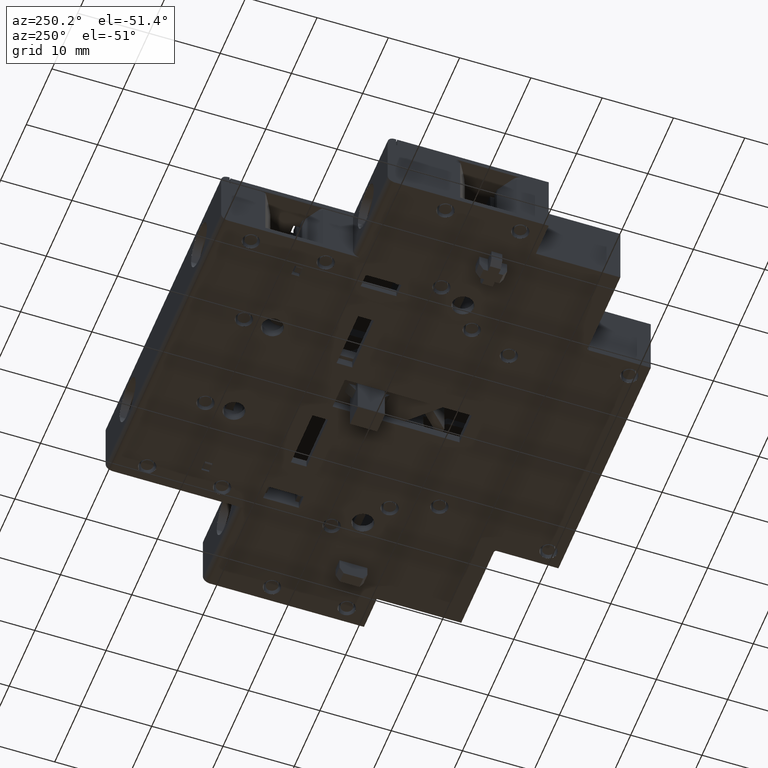
[diagram: clean part render]
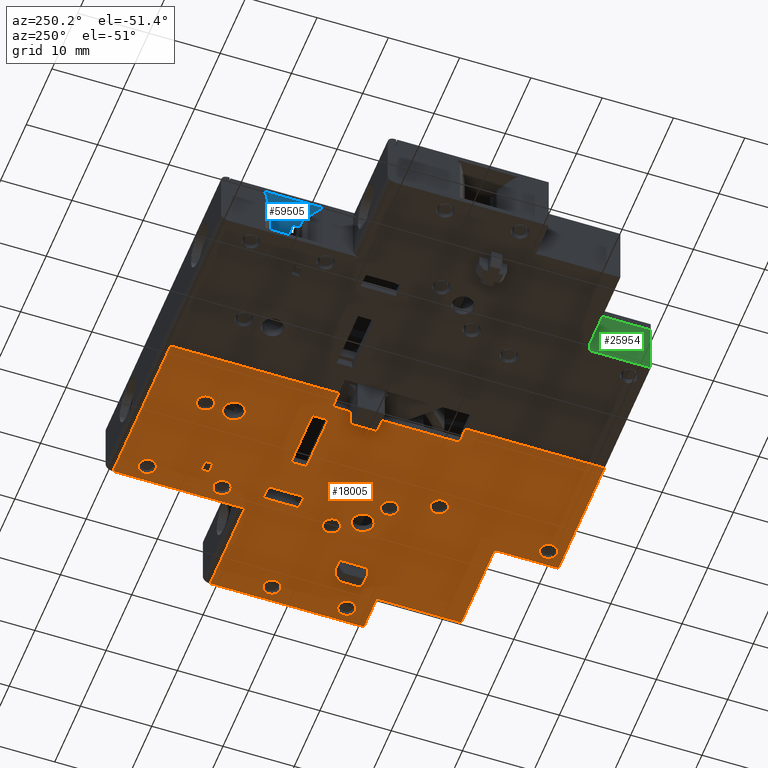
[diagram: same view with three faces highlighted in distinct colors, each labeled with its STEP entity id]
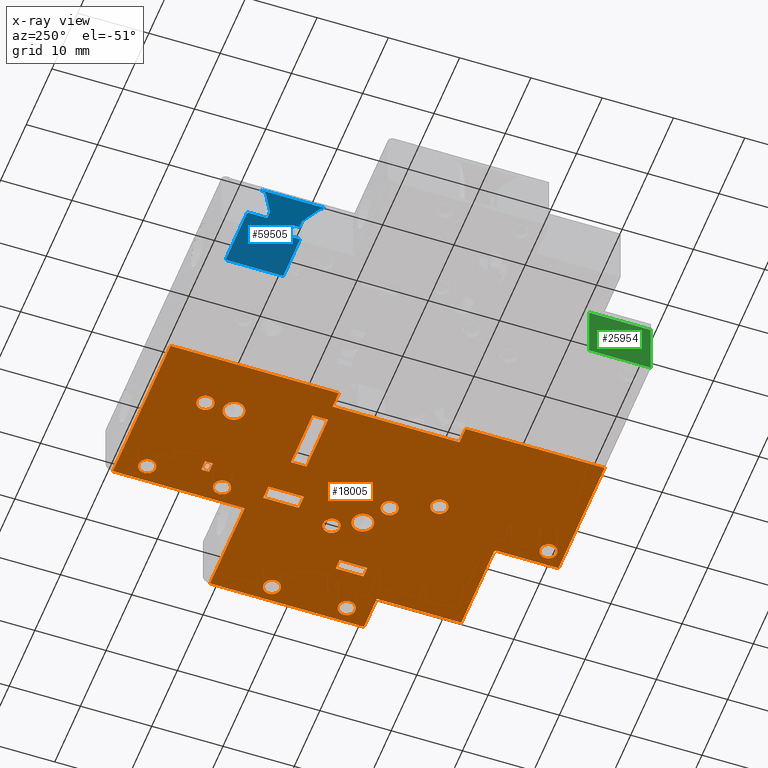
[diagram: x-ray of the same camera — body ghosted, the three highlighted faces saturated]
A machine part, auxiliary view with three faces highlighted in distinct colors.
The next image is the same camera in x-ray (body ghosted, the three faces saturated) — at least one of them is partly hidden behind the body in this view.
Their STEP definitions:

[orange] entity #18005 — the highlighted planar face has unit normal (0, 0, 1).
#7005=CARTESIAN_POINT('',(3.118110546778E1,2.566970650536E1,4.6E0));
#7006=DIRECTION('',(0.E0,0.E0,-1.E0));
#7007=DIRECTION('',(-1.E0,1.184237892933E-14,0.E0));
#7008=AXIS2_PLACEMENT_3D('',#7005,#7006,#7007);
#7010=DIRECTION('',(0.E0,1.E0,0.E0));
#7011=VECTOR('',#7010,3.9E0);
#7012=CARTESIAN_POINT('',(3.938110546778E1,4.076970650536E1,4.6E0));
#7013=LINE('',#7012,#7011);
#7014=DIRECTION('',(1.E0,0.E0,0.E0));
#7015=VECTOR('',#7014,1.5E0);
#7016=CARTESIAN_POINT('',(3.938110546778E1,4.466970650536E1,4.6E0));
#7017=LINE('',#7016,#7015);
#7018=DIRECTION('',(0.E0,-1.E0,0.E0));
#7019=VECTOR('',#7018,3.9E0);
#7020=CARTESIAN_POINT('',(4.088110546778E1,4.466970650536E1,4.6E0));
#7021=LINE('',#7020,#7019);
#7022=DIRECTION('',(-1.E0,0.E0,0.E0));
#7023=VECTOR('',#7022,1.5E0);
#7024=CARTESIAN_POINT('',(4.088110546778E1,4.076970650536E1,4.6E0));
#7025=LINE('',#7024,#7023);
#7026=CARTESIAN_POINT('',(3.427991767942E1,7.386819408172E1,4.6E0));
#7027=CARTESIAN_POINT('',(3.426811330976E1,7.372466497823E1,4.6E0));
#7028=CARTESIAN_POINT('',(3.421260396510E1,7.346322396867E1,4.6E0));
#7029=CARTESIAN_POINT('',(3.402294188462E1,7.314731743693E1,4.6E0));
#7030=CARTESIAN_POINT('',(3.375897048310E1,7.290945571669E1,4.6E0));
#7031=CARTESIAN_POINT('',(3.344585360189E1,7.275841547457E1,4.6E0));
#7032=CARTESIAN_POINT('',(3.308399378953E1,7.270057810177E1,4.6E0));
#7033=CARTESIAN_POINT('',(3.271321908944E1,7.275901145679E1,4.6E0));
#7034=CARTESIAN_POINT('',(3.239331672518E1,7.291441647676E1,4.6E0));
#7035=CARTESIAN_POINT('',(3.211637731504E1,7.317858151968E1,4.6E0));
#7036=CARTESIAN_POINT('',(3.192024363406E1,7.352695425870E1,4.6E0));
#7037=CARTESIAN_POINT('',(3.188099163125E1,7.378302353276E1,4.6E0));
#7038=CARTESIAN_POINT('',(3.188110546778E1,7.391970650536E1,4.6E0));
#7040=CARTESIAN_POINT('',(3.188110546778E1,7.391970650536E1,4.6E0));
#7041=CARTESIAN_POINT('',(3.188022031172E1,7.404993681096E1,4.6E0));
#7042=CARTESIAN_POINT('',(3.191797658508E1,7.429762694188E1,4.6E0));
#7043=CARTESIAN_POINT('',(3.209653191135E1,7.463571777511E1,4.6E0));
#7044=CARTESIAN_POINT('',(3.238698467433E1,7.492576301208E1,4.6E0));
#7045=CARTESIAN_POINT('',(3.274239457118E1,7.509201100955E1,4.6E0));
#7046=CARTESIAN_POINT('',(3.313575686307E1,7.513977057378E1,4.6E0));
#7047=CARTESIAN_POINT('',(3.351360195011E1,7.506043955143E1,4.6E0));
#7048=CARTESIAN_POINT('',(3.384179711543E1,7.487191290580E1,4.6E0));
#7049=CARTESIAN_POINT('',(3.408773713853E1,7.460607569763E1,4.6E0));
#7050=CARTESIAN_POINT('',(3.425059508829E1,7.426553208367E1,4.6E0));
#7051=CARTESIAN_POINT('',(3.428181524206E1,7.400691658843E1,4.6E0));
#7052=CARTESIAN_POINT('',(3.427991767942E1,7.386819408172E1,4.6E0));
#7054=CARTESIAN_POINT('',(2.157991767942E1,7.026819408172E1,4.6E0));
#7055=CARTESIAN_POINT('',(2.156811330976E1,7.012466497823E1,4.6E0));
#7056=CARTESIAN_POINT('',(2.151260396510E1,6.986322396866E1,4.6E0));
#7057=CARTESIAN_POINT('',(2.132294188460E1,6.954731743692E1,4.6E0));
#7058=CARTESIAN_POINT('',(2.105897048307E1,6.930945571667E1,4.6E0));
#7059=CARTESIAN_POINT('',(2.074585360186E1,6.915841547456E1,4.6E0));
#7060=CARTESIAN_POINT('',(2.038399378951E1,6.910057810177E1,4.6E0));
#7061=CARTESIAN_POINT('',(2.001321908942E1,6.915901145679E1,4.6E0));
#7062=CARTESIAN_POINT('',(1.969331672517E1,6.931441647677E1,4.6E0));
#7063=CARTESIAN_POINT('',(1.941637731503E1,6.957858151969E1,4.6E0));
#7064=CARTESIAN_POINT('',(1.922024363405E1,6.992695425871E1,4.6E0));
#7065=CARTESIAN_POINT('',(1.918099163125E1,7.018302353276E1,4.6E0));
#7066=CARTESIAN_POINT('',(1.918110546778E1,7.031970650536E1,4.6E0));
#7068=CARTESIAN_POINT('',(1.918110546778E1,7.031970650536E1,4.6E0));
#7069=CARTESIAN_POINT('',(1.918022031172E1,7.044993681096E1,4.6E0));
#7070=CARTESIAN_POINT('',(1.921797658508E1,7.069762694188E1,4.6E0));
#7071=CARTESIAN_POINT('',(1.939653191135E1,7.103571777511E1,4.6E0));
#7072=CARTESIAN_POINT('',(1.968698467433E1,7.132576301208E1,4.6E0));
#7073=CARTESIAN_POINT('',(2.004239457118E1,7.149201100955E1,4.6E0));
#7074=CARTESIAN_POINT('',(2.043575686307E1,7.153977057378E1,4.6E0));
#7075=CARTESIAN_POINT('',(2.081360195011E1,7.146043955143E1,4.6E0));
#7076=CARTESIAN_POINT('',(2.114179711543E1,7.127191290580E1,4.6E0));
#7077=CARTESIAN_POINT('',(2.138773713853E1,7.100607569763E1,4.6E0));
#7078=CARTESIAN_POINT('',(2.155059508829E1,7.066553208367E1,4.6E0));
#7079=CARTESIAN_POINT('',(2.158181524206E1,7.040691658843E1,4.6E0));
#7080=CARTESIAN_POINT('',(2.157991767942E1,7.026819408172E1,4.6E0));
#7082=CARTESIAN_POINT('',(3.427991767942E1,6.336819408172E1,4.6E0));
#7083=CARTESIAN_POINT('',(3.426811330976E1,6.322466497823E1,4.6E0));
#7084=CARTESIAN_POINT('',(3.421260396510E1,6.296322396867E1,4.6E0));
#7085=CARTESIAN_POINT('',(3.402294188462E1,6.264731743693E1,4.6E0));
#7086=CARTESIAN_POINT('',(3.375897048310E1,6.240945571669E1,4.6E0));
#7087=CARTESIAN_POINT('',(3.344585360190E1,6.225841547457E1,4.6E0));
#7088=CARTESIAN_POINT('',(3.308399378953E1,6.220057810177E1,4.6E0));
#7089=CARTESIAN_POINT('',(3.271321908944E1,6.225901145679E1,4.6E0));
#7090=CARTESIAN_POINT('',(3.239331672518E1,6.241441647676E1,4.6E0));
#7091=CARTESIAN_POINT('',(3.211637731504E1,6.267858151968E1,4.6E0));
#7092=CARTESIAN_POINT('',(3.192024363406E1,6.302695425870E1,4.6E0));
#7093=CARTESIAN_POINT('',(3.188099163125E1,6.328302353276E1,4.6E0));
#7094=CARTESIAN_POINT('',(3.188110546778E1,6.341970650536E1,4.6E0));
#7096=CARTESIAN_POINT('',(3.188110546778E1,6.341970650536E1,4.6E0));
#7097=CARTESIAN_POINT('',(3.188022031172E1,6.354993681096E1,4.6E0));
#7098=CARTESIAN_POINT('',(3.191797658508E1,6.379762694188E1,4.6E0));
#7099=CARTESIAN_POINT('',(3.209653191135E1,6.413571777511E1,4.6E0));
#7100=CARTESIAN_POINT('',(3.238698467433E1,6.442576301208E1,4.6E0));
#7101=CARTESIAN_POINT('',(3.274239457118E1,6.459201100955E1,4.6E0));
#7102=CARTESIAN_POINT('',(3.313575686307E1,6.463977057378E1,4.6E0));
#7103=CARTESIAN_POINT('',(3.351360195011E1,6.456043955143E1,4.6E0));
#7104=CARTESIAN_POINT('',(3.384179711543E1,6.437191290580E1,4.6E0));
#7105=CARTESIAN_POINT('',(3.408773713853E1,6.410607569763E1,4.6E0));
#7106=CARTESIAN_POINT('',(3.425059508829E1,6.376553208367E1,4.6E0));
#7107=CARTESIAN_POINT('',(3.428181524206E1,6.350691658843E1,4.6E0));
#7108=CARTESIAN_POINT('',(3.427991767942E1,6.336819408172E1,4.6E0));
#7110=CARTESIAN_POINT('',(4.787991767942E1,5.146819408172E1,4.6E0));
#7111=CARTESIAN_POINT('',(4.786811330976E1,5.132466497823E1,4.6E0));
#7112=CARTESIAN_POINT('',(4.781260396510E1,5.106322396867E1,4.6E0));
#7113=CARTESIAN_POINT('',(4.762294188462E1,5.074731743693E1,4.6E0));
#7114=CARTESIAN_POINT('',(4.735897048310E1,5.050945571669E1,4.6E0));
#7115=CARTESIAN_POINT('',(4.704585360190E1,5.035841547457E1,4.6E0));
#7116=CARTESIAN_POINT('',(4.668399378954E1,5.030057810177E1,4.6E0));
#7117=CARTESIAN_POINT('',(4.631321908944E1,5.035901145679E1,4.6E0));
#7118=CARTESIAN_POINT('',(4.599331672518E1,5.051441647676E1,4.6E0));
#7119=CARTESIAN_POINT('',(4.571637731504E1,5.077858151968E1,4.6E0));
#7120=CARTESIAN_POINT('',(4.552024363406E1,5.112695425870E1,4.6E0));
#7121=CARTESIAN_POINT('',(4.548099163125E1,5.138302353276E1,4.6E0));
#7122=CARTESIAN_POINT('',(4.548110546778E1,5.151970650536E1,4.6E0));
#7124=CARTESIAN_POINT('',(4.548110546778E1,5.151970650536E1,4.6E0));
#7125=CARTESIAN_POINT('',(4.548022031172E1,5.164993681096E1,4.6E0));
#7126=CARTESIAN_POINT('',(4.551797658508E1,5.189762694188E1,4.6E0));
#7127=CARTESIAN_POINT('',(4.569653191135E1,5.223571777511E1,4.6E0));
#7128=CARTESIAN_POINT('',(4.598698467433E1,5.252576301208E1,4.6E0));
#7129=CARTESIAN_POINT('',(4.634239457118E1,5.269201100955E1,4.6E0));
#7130=CARTESIAN_POINT('',(4.673575686307E1,5.273977057378E1,4.6E0));
#7131=CARTESIAN_POINT('',(4.711360195011E1,5.266043955143E1,4.6E0));
#7132=CARTESIAN_POINT('',(4.744179711543E1,5.247191290580E1,4.6E0));
#7133=CARTESIAN_POINT('',(4.768773713853E1,5.220607569763E1,4.6E0));
#7134=CARTESIAN_POINT('',(4.785059508829E1,5.186553208367E1,4.6E0));
#7135=CARTESIAN_POINT('',(4.788181524206E1,5.160691658843E1,4.6E0));
#7136=CARTESIAN_POINT('',(4.787991767942E1,5.146819408172E1,4.6E0));
#7138=CARTESIAN_POINT('',(4.787991767942E1,4.096819408172E1,4.6E0));
#7139=CARTESIAN_POINT('',(4.786811330976E1,4.082466497823E1,4.6E0));
#7140=CARTESIAN_POINT('',(4.781260396510E1,4.056322396867E1,4.6E0));
#7141=CARTESIAN_POINT('',(4.762294188462E1,4.024731743694E1,4.6E0));
#7142=CARTESIAN_POINT('',(4.735897048310E1,4.000945571670E1,4.6E0));
#7143=CARTESIAN_POINT('',(4.704585360190E1,3.985841547457E1,4.6E0));
#7144=CARTESIAN_POINT('',(4.668399378954E1,3.980057810177E1,4.6E0));
#7145=CARTESIAN_POINT('',(4.631321908945E1,3.985901145678E1,4.6E0));
#7146=CARTESIAN_POINT('',(4.599331672518E1,4.001441647676E1,4.6E0));
#7147=CARTESIAN_POINT('',(4.571637731505E1,4.027858151968E1,4.6E0));
#7148=CARTESIAN_POINT('',(4.552024363406E1,4.062695425869E1,4.6E0));
#7149=CARTESIAN_POINT('',(4.548099163125E1,4.088302353276E1,4.6E0));
#7150=CARTESIAN_POINT('',(4.548110546778E1,4.101970650537E1,4.6E0));
#7152=CARTESIAN_POINT('',(4.548110546778E1,4.101970650537E1,4.6E0));
#7153=CARTESIAN_POINT('',(4.548022031172E1,4.114993681096E1,4.6E0));
#7154=CARTESIAN_POINT('',(4.551797658508E1,4.139762694187E1,4.6E0));
#7155=CARTESIAN_POINT('',(4.569653191135E1,4.173571777510E1,4.6E0));
#7156=CARTESIAN_POINT('',(4.598698467432E1,4.202576301208E1,4.6E0));
#7157=CARTESIAN_POINT('',(4.634239457118E1,4.219201100955E1,4.6E0));
#7158=CARTESIAN_POINT('',(4.673575686307E1,4.223977057378E1,4.6E0));
#7159=CARTESIAN_POINT('',(4.711360195011E1,4.216043955144E1,4.6E0));
#7160=CARTESIAN_POINT('',(4.744179711543E1,4.197191290580E1,4.6E0));
#7161=CARTESIAN_POINT('',(4.768773713852E1,4.170607569764E1,4.6E0));
#7162=CARTESIAN_POINT('',(4.785059508829E1,4.136553208367E1,4.6E0));
#7163=CARTESIAN_POINT('',(4.788181524206E1,4.110691658843E1,4.6E0));
#7164=CARTESIAN_POINT('',(4.787991767942E1,4.096819408172E1,4.6E0));
#7166=CARTESIAN_POINT('',(3.547991767942E1,4.756819408172E1,4.6E0));
#7167=CARTESIAN_POINT('',(3.546811330976E1,4.742466497823E1,4.6E0));
#7168=CARTESIAN_POINT('',(3.541260396510E1,4.716322396866E1,4.6E0));
#7169=CARTESIAN_POINT('',(3.522294188460E1,4.684731743692E1,4.6E0));
#7170=CARTESIAN_POINT('',(3.495897048307E1,4.660945571667E1,4.6E0));
#7171=CARTESIAN_POINT('',(3.464585360186E1,4.645841547456E1,4.6E0));
#7172=CARTESIAN_POINT('',(3.428399378951E1,4.640057810177E1,4.6E0));
#7173=CARTESIAN_POINT('',(3.391321908942E1,4.645901145679E1,4.6E0));
#7174=CARTESIAN_POINT('',(3.359331672517E1,4.661441647677E1,4.6E0));
#7175=CARTESIAN_POINT('',(3.331637731503E1,4.687858151969E1,4.6E0));
#7176=CARTESIAN_POINT('',(3.312024363405E1,4.722695425871E1,4.6E0));
#7177=CARTESIAN_POINT('',(3.308099163125E1,4.748302353276E1,4.6E0));
#7178=CARTESIAN_POINT('',(3.308110546778E1,4.761970650536E1,4.6E0));
#7180=CARTESIAN_POINT('',(3.308110546778E1,4.761970650536E1,4.6E0));
#7181=CARTESIAN_POINT('',(3.308022031172E1,4.774993681096E1,4.6E0));
#7182=CARTESIAN_POINT('',(3.311797658508E1,4.799762694188E1,4.6E0));
#7183=CARTESIAN_POINT('',(3.329653191135E1,4.833571777511E1,4.6E0));
#7184=CARTESIAN_POINT('',(3.358698467433E1,4.862576301208E1,4.6E0));
#7185=CARTESIAN_POINT('',(3.394239457118E1,4.879201100955E1,4.6E0));
#7186=CARTESIAN_POINT('',(3.433575686307E1,4.883977057378E1,4.6E0));
#7187=CARTESIAN_POINT('',(3.471360195011E1,4.876043955143E1,4.6E0));
#7188=CARTESIAN_POINT('',(3.504179711543E1,4.857191290580E1,4.6E0));
#7189=CARTESIAN_POINT('',(3.528773713853E1,4.830607569763E1,4.6E0));
#7190=CARTESIAN_POINT('',(3.545059508829E1,4.796553208367E1,4.6E0));
#7191=CARTESIAN_POINT('',(3.548181524206E1,4.770691658843E1,4.6E0));
#7192=CARTESIAN_POINT('',(3.547991767942E1,4.756819408172E1,4.6E0));
#7194=CARTESIAN_POINT('',(3.007991767942E1,4.136819408172E1,4.6E0));
#7195=CARTESIAN_POINT('',(3.006811330976E1,4.122466497823E1,4.6E0));
#7196=CARTESIAN_POINT('',(3.001260396510E1,4.096322396866E1,4.6E0));
#7197=CARTESIAN_POINT('',(2.982294188459E1,4.064731743691E1,4.6E0));
#7198=CARTESIAN_POINT('',(2.955897048305E1,4.040945571666E1,4.6E0));
#7199=CARTESIAN_POINT('',(2.924585360185E1,4.025841547456E1,4.6E0));
#7200=CARTESIAN_POINT('',(2.888399378950E1,4.020057810178E1,4.6E0));
#7201=CARTESIAN_POINT('',(2.851321908942E1,4.025901145680E1,4.6E0));
#7202=CARTESIAN_POINT('',(2.819331672516E1,4.041441647677E1,4.6E0));
#7203=CARTESIAN_POINT('',(2.791637731503E1,4.067858151969E1,4.6E0));
#7204=CARTESIAN_POINT('',(2.772024363406E1,4.102695425870E1,4.6E0));
#7205=CARTESIAN_POINT('',(2.768099163125E1,4.128302353276E1,4.6E0));
#7206=CARTESIAN_POINT('',(2.768110546778E1,4.141970650536E1,4.6E0));
#7208=CARTESIAN_POINT('',(2.768110546778E1,4.141970650536E1,4.6E0));
#7209=CARTESIAN_POINT('',(2.768022031172E1,4.154993681096E1,4.6E0));
#7210=CARTESIAN_POINT('',(2.771797658508E1,4.179762694188E1,4.6E0));
#7211=CARTESIAN_POINT('',(2.789653191135E1,4.213571777511E1,4.6E0));
#7212=CARTESIAN_POINT('',(2.818698467433E1,4.242576301208E1,4.6E0));
#7213=CARTESIAN_POINT('',(2.854239457118E1,4.259201100956E1,4.6E0));
#7214=CARTESIAN_POINT('',(2.893575686308E1,4.263977057378E1,4.6E0));
#7215=CARTESIAN_POINT('',(2.931360195011E1,4.256043955143E1,4.6E0));
#7216=CARTESIAN_POINT('',(2.964179711544E1,4.237191290580E1,4.6E0));
#7217=CARTESIAN_POINT('',(2.988773713854E1,4.210607569762E1,4.6E0));
#7218=CARTESIAN_POINT('',(3.005059508829E1,4.176553208366E1,4.6E0));
#7219=CARTESIAN_POINT('',(3.008181524207E1,4.150691658843E1,4.6E0));
#7220=CARTESIAN_POINT('',(3.007991767942E1,4.136819408172E1,4.6E0));
#7222=CARTESIAN_POINT('',(2.762991767942E1,3.526819408172E1,4.6E0));
#7223=CARTESIAN_POINT('',(2.761811330976E1,3.512466497823E1,4.6E0));
#7224=CARTESIAN_POINT('',(2.756260396510E1,3.486322396867E1,4.6E0));
#7225=CARTESIAN_POINT('',(2.737294188460E1,3.454731743692E1,4.6E0));
#7226=CARTESIAN_POINT('',(2.710897048307E1,3.430945571668E1,4.6E0));
#7227=CARTESIAN_POINT('',(2.679585360187E1,3.415841547456E1,4.6E0));
#7228=CARTESIAN_POINT('',(2.643399378952E1,3.410057810178E1,4.6E0));
#7229=CARTESIAN_POINT('',(2.606321908944E1,3.415901145679E1,4.6E0));
#7230=CARTESIAN_POINT('',(2.574331672517E1,3.431441647677E1,4.6E0));
#7231=CARTESIAN_POINT('',(2.546637731504E1,3.457858151968E1,4.6E0));
#7232=CARTESIAN_POINT('',(2.527024363406E1,3.492695425870E1,4.6E0));
#7233=CARTESIAN_POINT('',(2.523099163125E1,3.518302353276E1,4.6E0));
#7234=CARTESIAN_POINT('',(2.523110546778E1,3.531970650536E1,4.6E0));
#7236=CARTESIAN_POINT('',(2.523110546778E1,3.531970650536E1,4.6E0));
#7237=CARTESIAN_POINT('',(2.523022031172E1,3.544993681096E1,4.6E0));
#7238=CARTESIAN_POINT('',(2.526797658508E1,3.569762694188E1,4.6E0));
#7239=CARTESIAN_POINT('',(2.544653191135E1,3.603571777511E1,4.6E0));
#7240=CARTESIAN_POINT('',(2.573698467433E1,3.632576301208E1,4.6E0));
#7241=CARTESIAN_POINT('',(2.609239457118E1,3.649201100955E1,4.6E0));
#7242=CARTESIAN_POINT('',(2.648575686307E1,3.653977057378E1,4.6E0));
#7243=CARTESIAN_POINT('',(2.686360195011E1,3.646043955143E1,4.6E0));
#7244=CARTESIAN_POINT('',(2.719179711543E1,3.627191290580E1,4.6E0));
#7245=CARTESIAN_POINT('',(2.743773713853E1,3.600607569763E1,4.6E0));
#7246=CARTESIAN_POINT('',(2.760059508829E1,3.566553208367E1,4.6E0));
#7247=CARTESIAN_POINT('',(2.763181524206E1,3.540691658843E1,4.6E0));
#7248=CARTESIAN_POINT('',(2.762991767942E1,3.526819408172E1,4.6E0));
#7250=CARTESIAN_POINT('',(2.982991767942E1,1.916819408172E1,4.6E0));
#7251=CARTESIAN_POINT('',(2.981811330976E1,1.902466497823E1,4.6E0));
#7252=CARTESIAN_POINT('',(2.976260396510E1,1.876322396867E1,4.6E0));
#7253=CARTESIAN_POINT('',(2.957294188462E1,1.844731743693E1,4.6E0));
#7254=CARTESIAN_POINT('',(2.930897048310E1,1.820945571669E1,4.6E0));
#7255=CARTESIAN_POINT('',(2.899585360190E1,1.805841547457E1,4.6E0));
#7256=CARTESIAN_POINT('',(2.863399378954E1,1.800057810177E1,4.6E0));
#7257=CARTESIAN_POINT('',(2.826321908945E1,1.805901145679E1,4.6E0));
#7258=CARTESIAN_POINT('',(2.794331672518E1,1.821441647676E1,4.6E0));
#7259=CARTESIAN_POINT('',(2.766637731505E1,1.847858151968E1,4.6E0));
#7260=CARTESIAN_POINT('',(2.747024363406E1,1.882695425869E1,4.6E0));
#7261=CARTESIAN_POINT('',(2.743099163125E1,1.908302353276E1,4.6E0));
#7262=CARTESIAN_POINT('',(2.743110546778E1,1.921970650537E1,4.6E0));
#7264=CARTESIAN_POINT('',(2.743110546778E1,1.921970650537E1,4.6E0));
#7265=CARTESIAN_POINT('',(2.743022031172E1,1.934993681096E1,4.6E0));
#7266=CARTESIAN_POINT('',(2.746797658508E1,1.959762694187E1,4.6E0));
#7267=CARTESIAN_POINT('',(2.764653191135E1,1.993571777510E1,4.6E0));
#7268=CARTESIAN_POINT('',(2.793698467432E1,2.022576301208E1,4.6E0));
#7269=CARTESIAN_POINT('',(2.829239457118E1,2.039201100955E1,4.6E0));
#7270=CARTESIAN_POINT('',(2.868575686307E1,2.043977057378E1,4.6E0));
#7271=CARTESIAN_POINT('',(2.906360195011E1,2.036043955144E1,4.6E0));
#7272=CARTESIAN_POINT('',(2.939179711543E1,2.017191290580E1,4.6E0));
#7273=CARTESIAN_POINT('',(2.963773713852E1,1.990607569764E1,4.6E0));
#7274=CARTESIAN_POINT('',(2.980059508829E1,1.956553208367E1,4.6E0));
#7275=CARTESIAN_POINT('',(2.983181524206E1,1.930691658843E1,4.6E0));
#7276=CARTESIAN_POINT('',(2.982991767942E1,1.916819408172E1,4.6E0));
#7278=CARTESIAN_POINT('',(3.244458086591E1,4.541740328696E1,4.6E0));
#7279=CARTESIAN_POINT('',(3.260361657550E1,4.540594485329E1,4.6E0));
#7280=CARTESIAN_POINT('',(3.289698965415E1,4.534975807453E1,4.6E0));
#7281=CARTESIAN_POINT('',(3.326827923791E1,4.515189257941E1,4.6E0));
#7282=CARTESIAN_POINT('',(3.355482382530E1,4.488176853556E1,4.6E0));
#7283=CARTESIAN_POINT('',(3.376352523661E1,4.454264983907E1,4.6E0));
#7284=CARTESIAN_POINT('',(3.388159355402E1,4.415223734788E1,4.6E0));
#7285=CARTESIAN_POINT('',(3.388794686559E1,4.373144108430E1,4.6E0));
#7286=CARTESIAN_POINT('',(3.377919831705E1,4.332795311798E1,4.6E0));
#7287=CARTESIAN_POINT('',(3.357350531269E1,4.297954913850E1,4.6E0));
#7288=CARTESIAN_POINT('',(3.324433273543E1,4.267097226794E1,4.6E0));
#7289=CARTESIAN_POINT('',(3.284333951779E1,4.246357972074E1,4.6E0));
#7290=CARTESIAN_POINT('',(3.254166022795E1,4.242005681092E1,4.6E0));
#7291=CARTESIAN_POINT('',(3.238110546778E1,4.241970650536E1,4.6E0));
#7293=CARTESIAN_POINT('',(3.238110546778E1,4.241970650536E1,4.6E0));
#7294=CARTESIAN_POINT('',(3.223263515529E1,4.241901569687E1,4.6E0));
#7295=CARTESIAN_POINT('',(3.194862717420E1,4.245858929205E1,4.6E0));
#7296=CARTESIAN_POINT('',(3.156577924805E1,4.263852655509E1,4.6E0));
#7297=CARTESIAN_POINT('',(3.121299702584E1,4.294590698717E1,4.6E0));
#7298=CARTESIAN_POINT('',(3.097964477109E1,4.332833315090E1,4.6E0));
#7299=CARTESIAN_POINT('',(3.087029157271E1,4.375380695695E1,4.6E0));
#7300=CARTESIAN_POINT('',(3.088471689873E1,4.419686355985E1,4.6E0));
#7301=CARTESIAN_POINT('',(3.102458016478E1,4.460727750204E1,4.6E0));
#7302=CARTESIAN_POINT('',(3.126955776088E1,4.495445108343E1,4.6E0));
#7303=CARTESIAN_POINT('',(3.159596149193E1,4.522016578162E1,4.6E0));
#7304=CARTESIAN_POINT('',(3.199951821113E1,4.539097013686E1,4.6E0));
#7305=CARTESIAN_POINT('',(3.229088781901E1,4.542138066204E1,4.6E0));
#7306=CARTESIAN_POINT('',(3.244458086591E1,4.541740328696E1,4.6E0));
#7308=CARTESIAN_POINT('',(2.044458086591E1,6.781740328696E1,4.6E0));
#7309=CARTESIAN_POINT('',(2.060361657550E1,6.780594485329E1,4.6E0));
#7310=CARTESIAN_POINT('',(2.089698965415E1,6.774975807453E1,4.6E0));
#7311=CARTESIAN_POINT('',(2.126827923791E1,6.755189257940E1,4.6E0));
#7312=CARTESIAN_POINT('',(2.155482382530E1,6.728176853556E1,4.6E0));
#7313=CARTESIAN_POINT('',(2.176352523661E1,6.694264983907E1,4.6E0));
#7314=CARTESIAN_POINT('',(2.188159355402E1,6.655223734788E1,4.6E0));
#7315=CARTESIAN_POINT('',(2.188794686559E1,6.613144108430E1,4.6E0));
#7316=CARTESIAN_POINT('',(2.177919831705E1,6.572795311798E1,4.6E0));
#7317=CARTESIAN_POINT('',(2.157350531269E1,6.537954913850E1,4.6E0));
#7318=CARTESIAN_POINT('',(2.124433273543E1,6.507097226794E1,4.6E0));
#7319=CARTESIAN_POINT('',(2.084333951779E1,6.486357972074E1,4.6E0));
#7320=CARTESIAN_POINT('',(2.054166022795E1,6.482005681092E1,4.6E0));
#7321=CARTESIAN_POINT('',(2.038110546778E1,6.481970650536E1,4.6E0));
#7323=CARTESIAN_POINT('',(2.038110546778E1,6.481970650536E1,4.6E0));
#7324=CARTESIAN_POINT('',(2.023263515529E1,6.481901569687E1,4.6E0));
#7325=CARTESIAN_POINT('',(1.994862717420E1,6.485858929205E1,4.6E0));
#7326=CARTESIAN_POINT('',(1.956577924805E1,6.503852655509E1,4.6E0));
#7327=CARTESIAN_POINT('',(1.921299702584E1,6.534590698717E1,4.6E0));
#7328=CARTESIAN_POINT('',(1.897964477109E1,6.572833315090E1,4.6E0));
#7329=CARTESIAN_POINT('',(1.887029157271E1,6.615380695695E1,4.6E0));
#7330=CARTESIAN_POINT('',(1.888471689873E1,6.659686355985E1,4.6E0));
#7331=CARTESIAN_POINT('',(1.902458016478E1,6.700727750204E1,4.6E0));
#7332=CARTESIAN_POINT('',(1.926955776088E1,6.735445108343E1,4.6E0));
#7333=CARTESIAN_POINT('',(1.959596149193E1,6.762016578162E1,4.6E0));
#7334=CARTESIAN_POINT('',(1.999951821113E1,6.779097013686E1,4.6E0));
#7335=CARTESIAN_POINT('',(2.029088781901E1,6.782138066204E1,4.6E0));
#7336=CARTESIAN_POINT('',(2.044458086591E1,6.781740328696E1,4.6E0));
#7338=DIRECTION('',(1.E0,-2.157944604901E-14,-1.432072567527E-12));
#7339=VECTOR('',#7338,1.35E1);
#7340=CARTESIAN_POINT('',(3.538110546778E1,5.941970650536E1,4.600000000019E0));
#7341=LINE('',#7340,#7339);
#7813=DIRECTION('',(-1.E0,0.E0,0.E0));
#7814=VECTOR('',#7813,2.E0);
#7815=CARTESIAN_POINT('',(3.288110546778E1,5.771970650536E1,4.6E0));
#7816=LINE('',#7815,#7814);
#7825=DIRECTION('',(0.E0,-1.E0,0.E0));
#7826=VECTOR('',#7825,5.E0);
#7827=CARTESIAN_POINT('',(3.088110546778E1,5.771970650536E1,4.6E0));
#7828=LINE('',#7827,#7826);
#7837=DIRECTION('',(1.E0,0.E0,0.E0));
#7838=VECTOR('',#7837,2.E0);
#7839=CARTESIAN_POINT('',(3.088110546778E1,5.271970650536E1,4.6E0));
#7840=LINE('',#7839,#7838);
#7849=DIRECTION('',(0.E0,1.E0,0.E0));
#7850=VECTOR('',#7849,5.E0);
#7851=CARTESIAN_POINT('',(3.288110546778E1,5.271970650536E1,4.6E0));
#7852=LINE('',#7851,#7850);
#8224=DIRECTION('',(0.E0,-1.E0,0.E0));
#8225=VECTOR('',#8224,2.16E1);
#8226=CARTESIAN_POINT('',(4.888110546778E1,5.941970650536E1,4.6E0));
#8227=LINE('',#8226,#8225);
#8549=DIRECTION('',(-1.E0,0.E0,0.E0));
#8550=VECTOR('',#8549,5.E0);
#8551=CARTESIAN_POINT('',(4.888110546778E1,3.781970650536E1,4.6E0));
#8552=LINE('',#8551,#8550);
#8561=DIRECTION('',(0.E0,-1.E0,0.E0));
#8562=VECTOR('',#8561,1.185E1);
#8563=CARTESIAN_POINT('',(4.388110546778E1,3.781970650536E1,4.6E0));
#8564=LINE('',#8563,#8562);
#8569=DIRECTION('',(-1.E0,0.E0,0.E0));
#8570=VECTOR('',#8569,1.27E1);
#8571=CARTESIAN_POINT('',(4.388110546778E1,2.596970650536E1,4.6E0));
#8572=LINE('',#8571,#8570);
#8593=DIRECTION('',(0.E0,-1.E0,0.E0));
#8594=VECTOR('',#8593,8.65E0);
#8595=CARTESIAN_POINT('',(3.088110546778E1,2.566970650536E1,4.6E0));
#8596=LINE('',#8595,#8594);
#8609=DIRECTION('',(-1.E0,0.E0,0.E0));
#8610=VECTOR('',#8609,1.8E1);
#8611=CARTESIAN_POINT('',(3.088110546778E1,1.701970650536E1,4.6E0));
#8612=LINE('',#8611,#8610);
#9285=DIRECTION('',(0.E0,1.E0,0.E0));
#9286=VECTOR('',#9285,1.95E1);
#9287=CARTESIAN_POINT('',(1.288110546778E1,1.701970650536E1,4.6E0));
#9288=LINE('',#9287,#9286);
#9289=DIRECTION('',(0.E0,1.E0,4.366942800545E-12));
#9290=VECTOR('',#9289,2.359998462014E1);
#9291=CARTESIAN_POINT('',(1.288110546778E1,5.431970650536E1,4.6E0));
#9292=LINE('',#9291,#9290);
#9633=DIRECTION('',(9.999999999999E-1,3.905995520704E-7,-3.658900343200E-12));
#9634=VECTOR('',#9633,2.25E1);
#9635=CARTESIAN_POINT('',(1.288110546778E1,7.791969112550E1,4.600000000103E0));
#9636=LINE('',#9635,#9634);
#11148=DIRECTION('',(-1.E0,0.E0,0.E0));
#11149=VECTOR('',#11148,2.4E0);
#11150=CARTESIAN_POINT('',(1.528110546778E1,5.431970650536E1,4.6E0));
#11151=LINE('',#11150,#11149);
#11160=DIRECTION('',(0.E0,1.E0,0.E0));
#11161=VECTOR('',#11160,1.78E1);
#11162=CARTESIAN_POINT('',(1.528110546778E1,3.651970650536E1,4.6E0));
#11163=LINE('',#11162,#11161);
#11172=DIRECTION('',(1.E0,0.E0,0.E0));
#11173=VECTOR('',#11172,2.4E0);
#11174=CARTESIAN_POINT('',(1.288110546778E1,3.651970650536E1,4.6E0));
#11175=LINE('',#11174,#11173);
#13059=DIRECTION('',(0.E0,-1.E0,-7.571123604906E-14));
#13060=VECTOR('',#13059,1.849999340863E1);
#13061=CARTESIAN_POINT('',(3.538110546778E1,7.791969991399E1,4.600000000021E0));
#13062=LINE('',#13061,#13060);
#13260=DIRECTION('',(0.E0,1.E0,0.E0));
#13261=VECTOR('',#13260,1.1E0);
#13262=CARTESIAN_POINT('',(3.118110546778E1,6.591970650536E1,4.6E0));
#13263=LINE('',#13262,#13261);
#13280=DIRECTION('',(1.E0,0.E0,0.E0));
#13281=VECTOR('',#13280,1.5E0);
#13282=CARTESIAN_POINT('',(2.968110546778E1,6.591970650536E1,4.6E0));
#13283=LINE('',#13282,#13281);
#13288=DIRECTION('',(0.E0,-1.E0,0.E0));
#13289=VECTOR('',#13288,1.1E0);
#13290=CARTESIAN_POINT('',(2.968110546778E1,6.701970650536E1,4.6E0));
#13291=LINE('',#13290,#13289);
#13300=DIRECTION('',(-1.E0,-1.894780628694E-14,0.E0));
#13301=VECTOR('',#13300,1.5E0);
#13302=CARTESIAN_POINT('',(3.118110546778E1,6.701970650536E1,4.6E0));
#13303=LINE('',#13302,#13301);
#14803=DIRECTION('',(0.E0,-1.E0,0.E0));
#14804=VECTOR('',#14803,2.2E0);
#14805=CARTESIAN_POINT('',(1.758110546778E1,5.631970650536E1,4.6E0));
#14806=LINE('',#14805,#14804);
#14811=DIRECTION('',(1.E0,0.E0,0.E0));
#14812=VECTOR('',#14811,8.4E0);
#14813=CARTESIAN_POINT('',(1.758110546778E1,5.411970650536E1,4.6E0));
#14814=LINE('',#14813,#14812);
#14823=DIRECTION('',(0.E0,1.E0,0.E0));
#14824=VECTOR('',#14823,2.2E0);
#14825=CARTESIAN_POINT('',(2.598110546778E1,5.411970650536E1,4.6E0));
#14826=LINE('',#14825,#14824);
#14835=DIRECTION('',(-1.E0,0.E0,0.E0));
#14836=VECTOR('',#14835,8.4E0);
#14837=CARTESIAN_POINT('',(2.598110546778E1,5.631970650536E1,4.6E0));
#14838=LINE('',#14837,#14836);
#15429=VERTEX_POINT('',#7026);
#15430=VERTEX_POINT('',#7038);
#15431=VERTEX_POINT('',#7054);
#15432=VERTEX_POINT('',#7066);
#15433=VERTEX_POINT('',#7082);
#15434=VERTEX_POINT('',#7094);
#15435=VERTEX_POINT('',#7110);
#15436=VERTEX_POINT('',#7122);
#15437=VERTEX_POINT('',#7138);
#15438=VERTEX_POINT('',#7150);
#15439=VERTEX_POINT('',#7166);
#15440=VERTEX_POINT('',#7178);
#15441=VERTEX_POINT('',#7194);
#15442=VERTEX_POINT('',#7206);
#15443=VERTEX_POINT('',#7222);
#15444=VERTEX_POINT('',#7234);
#15445=VERTEX_POINT('',#7250);
#15446=VERTEX_POINT('',#7262);
#15447=VERTEX_POINT('',#7278);
#15448=VERTEX_POINT('',#7291);
#15449=VERTEX_POINT('',#7308);
#15450=VERTEX_POINT('',#7321);
#15604=CARTESIAN_POINT('',(4.088110546778E1,4.076970650536E1,4.6E0));
#15605=VERTEX_POINT('',#15604);
#15612=CARTESIAN_POINT('',(3.938110546778E1,4.076970650536E1,4.6E0));
#15613=VERTEX_POINT('',#15612);
#15620=CARTESIAN_POINT('',(4.088110546778E1,4.466970650536E1,4.6E0));
#15621=VERTEX_POINT('',#15620);
#15622=CARTESIAN_POINT('',(3.938110546778E1,4.466970650536E1,4.6E0));
#15623=VERTEX_POINT('',#15622);
#15624=CARTESIAN_POINT('',(1.528110546778E1,5.431970650536E1,4.6E0));
#15625=CARTESIAN_POINT('',(1.288110546778E1,5.431970650536E1,4.6E0));
#15626=VERTEX_POINT('',#15624);
#15627=VERTEX_POINT('',#15625);
#15628=CARTESIAN_POINT('',(1.528110546778E1,3.651970650536E1,4.6E0));
#15629=VERTEX_POINT('',#15628);
#15630=CARTESIAN_POINT('',(1.288110546778E1,3.651970650536E1,4.6E0));
#15631=VERTEX_POINT('',#15630);
#15632=CARTESIAN_POINT('',(3.088110546778E1,2.566970650536E1,4.6E0));
#15633=CARTESIAN_POINT('',(3.088110546778E1,1.701970650536E1,4.6E0));
#15634=VERTEX_POINT('',#15632);
#15635=VERTEX_POINT('',#15633);
#15636=CARTESIAN_POINT('',(3.118110546778E1,2.596970650536E1,4.6E0));
#15637=VERTEX_POINT('',#15636);
#15638=CARTESIAN_POINT('',(4.388110546778E1,2.596970650536E1,4.6E0));
#15639=VERTEX_POINT('',#15638);
#15640=CARTESIAN_POINT('',(4.388110546778E1,3.781970650536E1,4.6E0));
#15641=VERTEX_POINT('',#15640);
#15642=CARTESIAN_POINT('',(4.888110546778E1,3.781970650536E1,4.6E0));
#15643=VERTEX_POINT('',#15642);
#15644=CARTESIAN_POINT('',(3.288110546778E1,5.271970650536E1,4.6E0));
#15645=CARTESIAN_POINT('',(3.288110546778E1,5.771970650536E1,4.6E0));
#15646=VERTEX_POINT('',#15644);
#15647=VERTEX_POINT('',#15645);
#15648=CARTESIAN_POINT('',(3.088110546778E1,5.271970650536E1,4.6E0));
#15649=VERTEX_POINT('',#15648);
#15650=CARTESIAN_POINT('',(3.088110546778E1,5.771970650536E1,4.6E0));
#15651=VERTEX_POINT('',#15650);
#15652=CARTESIAN_POINT('',(1.758110546778E1,5.411970650536E1,4.6E0));
#15653=CARTESIAN_POINT('',(2.598110546778E1,5.411970650536E1,4.6E0));
#15654=VERTEX_POINT('',#15652);
#15655=VERTEX_POINT('',#15653);
#15656=CARTESIAN_POINT('',(1.758110546778E1,5.631970650536E1,4.6E0));
#15657=VERTEX_POINT('',#15656);
#15658=CARTESIAN_POINT('',(2.598110546778E1,5.631970650536E1,4.6E0));
#15659=VERTEX_POINT('',#15658);
#15660=CARTESIAN_POINT('',(3.118110546778E1,6.591970650536E1,4.6E0));
#15661=CARTESIAN_POINT('',(3.118110546778E1,6.701970650536E1,4.6E0));
#15662=VERTEX_POINT('',#15660);
#15663=VERTEX_POINT('',#15661);
#15664=CARTESIAN_POINT('',(2.968110546778E1,6.591970650536E1,4.6E0));
#15665=VERTEX_POINT('',#15664);
#15666=CARTESIAN_POINT('',(2.968110546778E1,6.701970650536E1,4.6E0));
#15667=VERTEX_POINT('',#15666);
#15672=CARTESIAN_POINT('',(3.538110546778E1,5.941970650536E1,4.600000000019E0));
#15673=CARTESIAN_POINT('',(4.888110546778E1,5.941970650536E1,4.6E0));
#15674=VERTEX_POINT('',#15672);
#15675=VERTEX_POINT('',#15673);
#16284=CARTESIAN_POINT('',(1.288110546778E1,1.701970650536E1,4.6E0));
#16285=VERTEX_POINT('',#16284);
#16522=CARTESIAN_POINT('',(1.288110546778E1,7.791969112550E1,4.600000000103E0));
#16523=VERTEX_POINT('',#16522);
#16598=CARTESIAN_POINT('',(3.538110546778E1,7.791969991399E1,4.600000000021E0));
#16599=VERTEX_POINT('',#16598);
#17866=CARTESIAN_POINT('',(3.088110546778E1,4.746970211111E1,4.6E0));
#17867=DIRECTION('',(0.E0,0.E0,1.E0));
#17868=DIRECTION('',(1.E0,0.E0,0.E0));
#17869=AXIS2_PLACEMENT_3D('',#17866,#17867,#17868);
#17870=PLANE('',#17869);
#17872=ORIENTED_EDGE('',*,*,#17871,.F.);
#17874=ORIENTED_EDGE('',*,*,#17873,.F.);
#17876=ORIENTED_EDGE('',*,*,#17875,.F.);
#17878=ORIENTED_EDGE('',*,*,#17877,.F.);
#17880=ORIENTED_EDGE('',*,*,#17879,.F.);
#17882=ORIENTED_EDGE('',*,*,#17881,.F.);
#17884=ORIENTED_EDGE('',*,*,#17883,.F.);
#17886=ORIENTED_EDGE('',*,*,#17885,.F.);
#17888=ORIENTED_EDGE('',*,*,#17887,.F.);
#17890=ORIENTED_EDGE('',*,*,#17889,.F.);
#17892=ORIENTED_EDGE('',*,*,#17891,.T.);
#17894=ORIENTED_EDGE('',*,*,#17893,.F.);
#17896=ORIENTED_EDGE('',*,*,#17895,.F.);
#17898=ORIENTED_EDGE('',*,*,#17897,.F.);
#17900=ORIENTED_EDGE('',*,*,#17899,.F.);
#17901=EDGE_LOOP('',(#17872,#17874,#17876,#17878,#17880,#17882,#17884,#17886,
#17888,#17890,#17892,#17894,#17896,#17898,#17900));
#17902=FACE_OUTER_BOUND('',#17901,.F.);
#17903=ORIENTED_EDGE('',*,*,#17821,.T.);
#17904=ORIENTED_EDGE('',*,*,#17860,.T.);
#17905=ORIENTED_EDGE('',*,*,#17784,.T.);
#17906=ORIENTED_EDGE('',*,*,#17803,.T.);
#17907=EDGE_LOOP('',(#17903,#17904,#17905,#17906));
#17908=FACE_BOUND('',#17907,.F.);
#17910=ORIENTED_EDGE('',*,*,#17909,.F.);
#17912=ORIENTED_EDGE('',*,*,#17911,.F.);
#17914=ORIENTED_EDGE('',*,*,#17913,.F.);
#17916=ORIENTED_EDGE('',*,*,#17915,.F.);
#17917=EDGE_LOOP('',(#17910,#17912,#17914,#17916));
#17918=FACE_BOUND('',#17917,.F.);
#17920=ORIENTED_EDGE('',*,*,#17919,.T.);
#17922=ORIENTED_EDGE('',*,*,#17921,.T.);
#17923=EDGE_LOOP('',(#17920,#17922));
#17924=FACE_BOUND('',#17923,.F.);
#17926=ORIENTED_EDGE('',*,*,#17925,.T.);
#17928=ORIENTED_EDGE('',*,*,#17927,.T.);
#17929=EDGE_LOOP('',(#17926,#17928));
#17930=FACE_BOUND('',#17929,.F.);
#17932=ORIENTED_EDGE('',*,*,#17931,.T.);
#17934=ORIENTED_EDGE('',*,*,#17933,.T.);
#17935=EDGE_LOOP('',(#17932,#17934));
#17936=FACE_BOUND('',#17935,.F.);
#17938=ORIENTED_EDGE('',*,*,#17937,.T.);
#17940=ORIENTED_EDGE('',*,*,#17939,.T.);
#17941=EDGE_LOOP('',(#17938,#17940));
#17942=FACE_BOUND('',#17941,.F.);
#17944=ORIENTED_EDGE('',*,*,#17943,.T.);
#17946=ORIENTED_EDGE('',*,*,#17945,.T.);
#17947=EDGE_LOOP('',(#17944,#17946));
#17948=FACE_BOUND('',#17947,.F.);
#17950=ORIENTED_EDGE('',*,*,#17949,.T.);
#17952=ORIENTED_EDGE('',*,*,#17951,.T.);
#17953=EDGE_LOOP('',(#17950,#17952));
#17954=FACE_BOUND('',#17953,.F.);
#17956=ORIENTED_EDGE('',*,*,#17955,.T.);
#17958=ORIENTED_EDGE('',*,*,#17957,.T.);
#17959=EDGE_LOOP('',(#17956,#17958));
#17960=FACE_BOUND('',#17959,.F.);
#17962=ORIENTED_EDGE('',*,*,#17961,.T.);
#17964=ORIENTED_EDGE('',*,*,#17963,.T.);
#17965=EDGE_LOOP('',(#17962,#17964));
#17966=FACE_BOUND('',#17965,.F.);
#17968=ORIENTED_EDGE('',*,*,#17967,.T.);
#17970=ORIENTED_EDGE('',*,*,#17969,.T.);
#17971=EDGE_LOOP('',(#17968,#17970));
#17972=FACE_BOUND('',#17971,.F.);
#17974=ORIENTED_EDGE('',*,*,#17973,.F.);
#17976=ORIENTED_EDGE('',*,*,#17975,.F.);
#17978=ORIENTED_EDGE('',*,*,#17977,.F.);
#17980=ORIENTED_EDGE('',*,*,#17979,.F.);
#17981=EDGE_LOOP('',(#17974,#17976,#17978,#17980));
#17982=FACE_BOUND('',#17981,.F.);
#17984=ORIENTED_EDGE('',*,*,#17983,.T.);
#17986=ORIENTED_EDGE('',*,*,#17985,.T.);
#17987=EDGE_LOOP('',(#17984,#17986));
#17988=FACE_BOUND('',#17987,.F.);
#17990=ORIENTED_EDGE('',*,*,#17989,.T.);
#17992=ORIENTED_EDGE('',*,*,#17991,.T.);
#17993=EDGE_LOOP('',(#17990,#17992));
#17994=FACE_BOUND('',#17993,.F.);
#17996=ORIENTED_EDGE('',*,*,#17995,.F.);
#17998=ORIENTED_EDGE('',*,*,#17997,.F.);
#18000=ORIENTED_EDGE('',*,*,#17999,.F.);
#18002=ORIENTED_EDGE('',*,*,#18001,.F.);
#18003=EDGE_LOOP('',(#17996,#17998,#18000,#18002));
#18004=FACE_BOUND('',#18003,.F.);
#18005=ADVANCED_FACE('',(#17902,#17908,#17918,#17924,#17930,#17936,#17942,
#17948,#17954,#17960,#17966,#17972,#17982,#17988,#17994,#18004),#17870,.F.);
#7009=CIRCLE('',#7008,3.E-1);
#7039=B_SPLINE_CURVE_WITH_KNOTS('',3,(#7026,#7027,#7028,#7029,#7030,#7031,#7032,
#7033,#7034,#7035,#7036,#7037,#7038),.UNSPECIFIED.,.F.,.F.,(4,1,1,1,1,1,1,1,1,1,
4),(0.E0,1.E-1,2.E-1,3.E-1,4.E-1,5.E-1,6.E-1,7.E-1,8.E-1,9.E-1,1.E0),
.UNSPECIFIED.);
#7053=B_SPLINE_CURVE_WITH_KNOTS('',3,(#7040,#7041,#7042,#7043,#7044,#7045,#7046,
#7047,#7048,#7049,#7050,#7051,#7052),.UNSPECIFIED.,.F.,.F.,(4,1,1,1,1,1,1,1,1,1,
4),(0.E0,1.E-1,2.E-1,3.E-1,4.E-1,5.E-1,6.E-1,7.E-1,8.E-1,9.E-1,1.E0),
.UNSPECIFIED.);
#7067=B_SPLINE_CURVE_WITH_KNOTS('',3,(#7054,#7055,#7056,#7057,#7058,#7059,#7060,
#7061,#7062,#7063,#7064,#7065,#7066),.UNSPECIFIED.,.F.,.F.,(4,1,1,1,1,1,1,1,1,1,
4),(0.E0,1.E-1,2.E-1,3.E-1,4.E-1,5.E-1,6.E-1,7.E-1,8.E-1,9.E-1,1.E0),
.UNSPECIFIED.);
#7081=B_SPLINE_CURVE_WITH_KNOTS('',3,(#7068,#7069,#7070,#7071,#7072,#7073,#7074,
#7075,#7076,#7077,#7078,#7079,#7080),.UNSPECIFIED.,.F.,.F.,(4,1,1,1,1,1,1,1,1,1,
4),(0.E0,1.E-1,2.E-1,3.E-1,4.E-1,5.E-1,6.E-1,7.E-1,8.E-1,9.E-1,1.E0),
.UNSPECIFIED.);
#7095=B_SPLINE_CURVE_WITH_KNOTS('',3,(#7082,#7083,#7084,#7085,#7086,#7087,#7088,
#7089,#7090,#7091,#7092,#7093,#7094),.UNSPECIFIED.,.F.,.F.,(4,1,1,1,1,1,1,1,1,1,
4),(0.E0,1.E-1,2.E-1,3.E-1,4.E-1,5.E-1,6.E-1,7.E-1,8.E-1,9.E-1,1.E0),
.UNSPECIFIED.);
#7109=B_SPLINE_CURVE_WITH_KNOTS('',3,(#7096,#7097,#7098,#7099,#7100,#7101,#7102,
#7103,#7104,#7105,#7106,#7107,#7108),.UNSPECIFIED.,.F.,.F.,(4,1,1,1,1,1,1,1,1,1,
4),(0.E0,1.E-1,2.E-1,3.E-1,4.E-1,5.E-1,6.E-1,7.E-1,8.E-1,9.E-1,1.E0),
.UNSPECIFIED.);
#7123=B_SPLINE_CURVE_WITH_KNOTS('',3,(#7110,#7111,#7112,#7113,#7114,#7115,#7116,
#7117,#7118,#7119,#7120,#7121,#7122),.UNSPECIFIED.,.F.,.F.,(4,1,1,1,1,1,1,1,1,1,
4),(0.E0,1.E-1,2.E-1,3.E-1,4.E-1,5.E-1,6.E-1,7.E-1,8.E-1,9.E-1,1.E0),
.UNSPECIFIED.);
#7137=B_SPLINE_CURVE_WITH_KNOTS('',3,(#7124,#7125,#7126,#7127,#7128,#7129,#7130,
#7131,#7132,#7133,#7134,#7135,#7136),.UNSPECIFIED.,.F.,.F.,(4,1,1,1,1,1,1,1,1,1,
4),(0.E0,1.E-1,2.E-1,3.E-1,4.E-1,5.E-1,6.E-1,7.E-1,8.E-1,9.E-1,1.E0),
.UNSPECIFIED.);
#7151=B_SPLINE_CURVE_WITH_KNOTS('',3,(#7138,#7139,#7140,#7141,#7142,#7143,#7144,
#7145,#7146,#7147,#7148,#7149,#7150),.UNSPECIFIED.,.F.,.F.,(4,1,1,1,1,1,1,1,1,1,
4),(0.E0,1.E-1,2.E-1,3.E-1,4.E-1,5.E-1,6.E-1,7.E-1,8.E-1,9.E-1,1.E0),
.UNSPECIFIED.);
#7165=B_SPLINE_CURVE_WITH_KNOTS('',3,(#7152,#7153,#7154,#7155,#7156,#7157,#7158,
#7159,#7160,#7161,#7162,#7163,#7164),.UNSPECIFIED.,.F.,.F.,(4,1,1,1,1,1,1,1,1,1,
4),(0.E0,1.E-1,2.E-1,3.E-1,4.E-1,5.E-1,6.E-1,7.E-1,8.E-1,9.E-1,1.E0),
.UNSPECIFIED.);
#7179=B_SPLINE_CURVE_WITH_KNOTS('',3,(#7166,#7167,#7168,#7169,#7170,#7171,#7172,
#7173,#7174,#7175,#7176,#7177,#7178),.UNSPECIFIED.,.F.,.F.,(4,1,1,1,1,1,1,1,1,1,
4),(0.E0,1.E-1,2.E-1,3.E-1,4.E-1,5.E-1,6.E-1,7.E-1,8.E-1,9.E-1,1.E0),
.UNSPECIFIED.);
#7193=B_SPLINE_CURVE_WITH_KNOTS('',3,(#7180,#7181,#7182,#7183,#7184,#7185,#7186,
#7187,#7188,#7189,#7190,#7191,#7192),.UNSPECIFIED.,.F.,.F.,(4,1,1,1,1,1,1,1,1,1,
4),(0.E0,1.E-1,2.E-1,3.E-1,4.E-1,5.E-1,6.E-1,7.E-1,8.E-1,9.E-1,1.E0),
.UNSPECIFIED.);
#7207=B_SPLINE_CURVE_WITH_KNOTS('',3,(#7194,#7195,#7196,#7197,#7198,#7199,#7200,
#7201,#7202,#7203,#7204,#7205,#7206),.UNSPECIFIED.,.F.,.F.,(4,1,1,1,1,1,1,1,1,1,
4),(0.E0,1.E-1,2.E-1,3.E-1,4.E-1,5.E-1,6.E-1,7.E-1,8.E-1,9.E-1,1.E0),
.UNSPECIFIED.);
#7221=B_SPLINE_CURVE_WITH_KNOTS('',3,(#7208,#7209,#7210,#7211,#7212,#7213,#7214,
#7215,#7216,#7217,#7218,#7219,#7220),.UNSPECIFIED.,.F.,.F.,(4,1,1,1,1,1,1,1,1,1,
4),(0.E0,1.E-1,2.E-1,3.E-1,4.E-1,5.E-1,6.E-1,7.E-1,8.E-1,9.E-1,1.E0),
.UNSPECIFIED.);
#7235=B_SPLINE_CURVE_WITH_KNOTS('',3,(#7222,#7223,#7224,#7225,#7226,#7227,#7228,
#7229,#7230,#7231,#7232,#7233,#7234),.UNSPECIFIED.,.F.,.F.,(4,1,1,1,1,1,1,1,1,1,
4),(0.E0,1.E-1,2.E-1,3.E-1,4.E-1,5.E-1,6.E-1,7.E-1,8.E-1,9.E-1,1.E0),
.UNSPECIFIED.);
#7249=B_SPLINE_CURVE_WITH_KNOTS('',3,(#7236,#7237,#7238,#7239,#7240,#7241,#7242,
#7243,#7244,#7245,#7246,#7247,#7248),.UNSPECIFIED.,.F.,.F.,(4,1,1,1,1,1,1,1,1,1,
4),(0.E0,1.E-1,2.E-1,3.E-1,4.E-1,5.E-1,6.E-1,7.E-1,8.E-1,9.E-1,1.E0),
.UNSPECIFIED.);
#7263=B_SPLINE_CURVE_WITH_KNOTS('',3,(#7250,#7251,#7252,#7253,#7254,#7255,#7256,
#7257,#7258,#7259,#7260,#7261,#7262),.UNSPECIFIED.,.F.,.F.,(4,1,1,1,1,1,1,1,1,1,
4),(0.E0,1.E-1,2.E-1,3.E-1,4.E-1,5.E-1,6.E-1,7.E-1,8.E-1,9.E-1,1.E0),
.UNSPECIFIED.);
#7277=B_SPLINE_CURVE_WITH_KNOTS('',3,(#7264,#7265,#7266,#7267,#7268,#7269,#7270,
#7271,#7272,#7273,#7274,#7275,#7276),.UNSPECIFIED.,.F.,.F.,(4,1,1,1,1,1,1,1,1,1,
4),(0.E0,1.E-1,2.E-1,3.E-1,4.E-1,5.E-1,6.E-1,7.E-1,8.E-1,9.E-1,1.E0),
.UNSPECIFIED.);
#7292=B_SPLINE_CURVE_WITH_KNOTS('',3,(#7278,#7279,#7280,#7281,#7282,#7283,#7284,
#7285,#7286,#7287,#7288,#7289,#7290,#7291),.UNSPECIFIED.,.F.,.F.,(4,1,1,1,1,1,1,
1,1,1,1,4),(0.E0,9.090909090909E-2,1.818181818182E-1,2.727272727273E-1,
3.636363636364E-1,4.545454545455E-1,5.454545454545E-1,6.363636363636E-1,
7.272727272727E-1,8.181818181818E-1,9.090909090909E-1,1.E0),.UNSPECIFIED.);
#7307=B_SPLINE_CURVE_WITH_KNOTS('',3,(#7293,#7294,#7295,#7296,#7297,#7298,#7299,
#7300,#7301,#7302,#7303,#7304,#7305,#7306),.UNSPECIFIED.,.F.,.F.,(4,1,1,1,1,1,1,
1,1,1,1,4),(0.E0,9.090909090909E-2,1.818181818182E-1,2.727272727273E-1,
3.636363636364E-1,4.545454545455E-1,5.454545454545E-1,6.363636363636E-1,
7.272727272727E-1,8.181818181818E-1,9.090909090909E-1,1.E0),.UNSPECIFIED.);
#7322=B_SPLINE_CURVE_WITH_KNOTS('',3,(#7308,#7309,#7310,#7311,#7312,#7313,#7314,
#7315,#7316,#7317,#7318,#7319,#7320,#7321),.UNSPECIFIED.,.F.,.F.,(4,1,1,1,1,1,1,
1,1,1,1,4),(0.E0,9.090909090909E-2,1.818181818182E-1,2.727272727273E-1,
3.636363636364E-1,4.545454545455E-1,5.454545454545E-1,6.363636363636E-1,
7.272727272727E-1,8.181818181818E-1,9.090909090909E-1,1.E0),.UNSPECIFIED.);
#7337=B_SPLINE_CURVE_WITH_KNOTS('',3,(#7323,#7324,#7325,#7326,#7327,#7328,#7329,
#7330,#7331,#7332,#7333,#7334,#7335,#7336),.UNSPECIFIED.,.F.,.F.,(4,1,1,1,1,1,1,
1,1,1,1,4),(0.E0,9.090909090909E-2,1.818181818182E-1,2.727272727273E-1,
3.636363636364E-1,4.545454545455E-1,5.454545454545E-1,6.363636363636E-1,
7.272727272727E-1,8.181818181818E-1,9.090909090909E-1,1.E0),.UNSPECIFIED.);
#17784=EDGE_CURVE('',#15621,#15605,#7021,.T.);
#17803=EDGE_CURVE('',#15605,#15613,#7025,.T.);
#17821=EDGE_CURVE('',#15613,#15623,#7013,.T.);
#17860=EDGE_CURVE('',#15623,#15621,#7017,.T.);
#17871=EDGE_CURVE('',#15674,#15675,#7341,.T.);
#17873=EDGE_CURVE('',#16599,#15674,#13062,.T.);
#17875=EDGE_CURVE('',#16523,#16599,#9636,.T.);
#17877=EDGE_CURVE('',#15627,#16523,#9292,.T.);
#17879=EDGE_CURVE('',#15626,#15627,#11151,.T.);
#17881=EDGE_CURVE('',#15629,#15626,#11163,.T.);
#17883=EDGE_CURVE('',#15631,#15629,#11175,.T.);
#17885=EDGE_CURVE('',#16285,#15631,#9288,.T.);
#17887=EDGE_CURVE('',#15635,#16285,#8612,.T.);
#17889=EDGE_CURVE('',#15634,#15635,#8596,.T.);
#17891=EDGE_CURVE('',#15634,#15637,#7009,.T.);
#17893=EDGE_CURVE('',#15639,#15637,#8572,.T.);
#17895=EDGE_CURVE('',#15641,#15639,#8564,.T.);
#17897=EDGE_CURVE('',#15643,#15641,#8552,.T.);
#17899=EDGE_CURVE('',#15675,#15643,#8227,.T.);
#17909=EDGE_CURVE('',#15646,#15647,#7852,.T.);
#17911=EDGE_CURVE('',#15649,#15646,#7840,.T.);
#17913=EDGE_CURVE('',#15651,#15649,#7828,.T.);
#17915=EDGE_CURVE('',#15647,#15651,#7816,.T.);
#17919=EDGE_CURVE('',#15429,#15430,#7039,.T.);
#17921=EDGE_CURVE('',#15430,#15429,#7053,.T.);
#17925=EDGE_CURVE('',#15431,#15432,#7067,.T.);
#17927=EDGE_CURVE('',#15432,#15431,#7081,.T.);
#17931=EDGE_CURVE('',#15433,#15434,#7095,.T.);
#17933=EDGE_CURVE('',#15434,#15433,#7109,.T.);
#17937=EDGE_CURVE('',#15435,#15436,#7123,.T.);
#17939=EDGE_CURVE('',#15436,#15435,#7137,.T.);
#17943=EDGE_CURVE('',#15437,#15438,#7151,.T.);
#17945=EDGE_CURVE('',#15438,#15437,#7165,.T.);
#17949=EDGE_CURVE('',#15439,#15440,#7179,.T.);
#17951=EDGE_CURVE('',#15440,#15439,#7193,.T.);
#17955=EDGE_CURVE('',#15441,#15442,#7207,.T.);
#17957=EDGE_CURVE('',#15442,#15441,#7221,.T.);
#17961=EDGE_CURVE('',#15443,#15444,#7235,.T.);
#17963=EDGE_CURVE('',#15444,#15443,#7249,.T.);
#17967=EDGE_CURVE('',#15445,#15446,#7263,.T.);
#17969=EDGE_CURVE('',#15446,#15445,#7277,.T.);
#17973=EDGE_CURVE('',#15654,#15655,#14814,.T.);
#17975=EDGE_CURVE('',#15657,#15654,#14806,.T.);
#17977=EDGE_CURVE('',#15659,#15657,#14838,.T.);
#17979=EDGE_CURVE('',#15655,#15659,#14826,.T.);
#17983=EDGE_CURVE('',#15447,#15448,#7292,.T.);
#17985=EDGE_CURVE('',#15448,#15447,#7307,.T.);
#17989=EDGE_CURVE('',#15449,#15450,#7322,.T.);
#17991=EDGE_CURVE('',#15450,#15449,#7337,.T.);
#17995=EDGE_CURVE('',#15662,#15663,#13263,.T.);
#17997=EDGE_CURVE('',#15665,#15662,#13283,.T.);
#17999=EDGE_CURVE('',#15667,#15665,#13291,.T.);
#18001=EDGE_CURVE('',#15663,#15667,#13303,.T.);

[blue] entity #59505 — the highlighted planar face has unit normal (0, 0, 1).
#55072=CARTESIAN_POINT('',(-5.568894532216E0,6.621970650535E1,1.31E1));
#55073=DIRECTION('',(0.E0,0.E0,-1.E0));
#55074=DIRECTION('',(1.501021529286E-12,1.E0,0.E0));
#55075=AXIS2_PLACEMENT_3D('',#55072,#55073,#55074);
#55077=DIRECTION('',(1.E0,-1.709743457924E-13,1.690314554993E-13));
#55078=VECTOR('',#55077,6.399999999995E0);
#55079=CARTESIAN_POINT('',(-3.468894532215E0,6.561970650536E1,1.31E1));
#55080=LINE('',#55079,#55078);
#55081=CARTESIAN_POINT('',(2.931105467779E0,6.581970650536E1,1.31E1));
#55082=DIRECTION('',(0.E0,0.E0,1.E0));
#55083=DIRECTION('',(4.996003610801E-12,-1.E0,0.E0));
#55084=AXIS2_PLACEMENT_3D('',#55081,#55082,#55083);
#55086=DIRECTION('',(1.251524136850E-14,1.E0,0.E0));
#55087=VECTOR('',#55086,7.7E0);
#55088=CARTESIAN_POINT('',(3.131105467780E0,6.581970650536E1,1.31E1));
#55089=LINE('',#55088,#55087);
#55090=CARTESIAN_POINT('',(2.931105467779E0,7.351970650536E1,1.31E1));
#55091=DIRECTION('',(0.E0,0.E0,1.E0));
#55092=DIRECTION('',(1.E0,0.E0,0.E0));
#55093=AXIS2_PLACEMENT_3D('',#55090,#55091,#55092);
#55095=DIRECTION('',(-1.E0,-3.333410365294E-14,0.E0));
#55096=VECTOR('',#55095,8.1E0);
#55097=CARTESIAN_POINT('',(2.931105467780E0,7.371970650536E1,1.31E1));
#55098=LINE('',#55097,#55096);
#55099=CARTESIAN_POINT('',(-5.168894532219E0,7.351970650536E1,1.31E1));
#55100=DIRECTION('',(9.992007221626E-13,0.E0,1.E0));
#55101=DIRECTION('',(-3.885780586198E-12,1.E0,0.E0));
#55102=AXIS2_PLACEMENT_3D('',#55099,#55100,#55101);
#55104=DIRECTION('',(-1.579847364042E-12,-1.E0,0.E0));
#55105=VECTOR('',#55104,2.4E0);
#55106=CARTESIAN_POINT('',(-5.368894532220E0,7.351970650536E1,1.31E1));
#55107=LINE('',#55106,#55105);
#55108=CARTESIAN_POINT('',(-5.568894532220E0,7.111970650535E1,1.31E1));
#55109=DIRECTION('',(0.E0,0.E0,-1.E0));
#55110=DIRECTION('',(1.E0,4.995115432643E-11,0.E0));
#55111=AXIS2_PLACEMENT_3D('',#55108,#55109,#55110);
#55113=DIRECTION('',(-1.E0,2.405758265503E-12,0.E0));
#55114=VECTOR('',#55113,6.320508075688E-1);
#55115=CARTESIAN_POINT('',(-5.568894532220E0,7.091970650536E1,1.31E1));
#55116=LINE('',#55115,#55114);
#55117=CARTESIAN_POINT('',(-6.200945339786E0,7.191970650537E1,1.31E1));
#55118=DIRECTION('',(0.E0,0.E0,-1.E0));
#55119=DIRECTION('',(-3.002931236961E-12,-1.E0,0.E0));
#55120=AXIS2_PLACEMENT_3D('',#55117,#55118,#55119);
#55122=DIRECTION('',(-8.660254037844E-1,5.E-1,0.E0));
#55123=VECTOR('',#55122,2.676537180436E0);
#55124=CARTESIAN_POINT('',(-6.700945339789E0,7.105368110157E1,1.31E1));
#55125=LINE('',#55124,#55123);
#55126=CARTESIAN_POINT('',(-8.518894532219E0,7.325797509557E1,1.31E1));
#55127=DIRECTION('',(0.E0,0.E0,-1.E0));
#55128=DIRECTION('',(-5.000000000027E-1,-8.660254037829E-1,0.E0));
#55129=AXIS2_PLACEMENT_3D('',#55126,#55127,#55128);
#55131=DIRECTION('',(-2.963647689369E-13,-1.E0,0.E0));
#55132=VECTOR('',#55131,9.176537180440E0);
#55133=CARTESIAN_POINT('',(-9.518894532219E0,7.325797509557E1,1.31E1));
#55134=LINE('',#55133,#55132);
#55135=CARTESIAN_POINT('',(-8.518894532218E0,6.408143791513E1,1.31E1));
#55136=DIRECTION('',(0.E0,0.E0,-1.E0));
#55137=DIRECTION('',(-1.E0,0.E0,0.E0));
#55138=AXIS2_PLACEMENT_3D('',#55135,#55136,#55137);
#55140=DIRECTION('',(8.660254037840E-1,5.000000000007E-1,0.E0));
#55141=VECTOR('',#55140,2.676537180442E0);
#55142=CARTESIAN_POINT('',(-9.018894532220E0,6.494746331892E1,1.31E1));
#55143=LINE('',#55142,#55141);
#55144=CARTESIAN_POINT('',(-6.200945339786E0,6.541970650536E1,1.31E1));
#55145=DIRECTION('',(0.E0,0.E0,-1.E0));
#55146=DIRECTION('',(-5.000000000004E-1,8.660254037842E-1,0.E0));
#55147=AXIS2_PLACEMENT_3D('',#55144,#55145,#55146);
#55149=DIRECTION('',(1.E0,-8.296493457671E-12,0.E0));
#55150=VECTOR('',#55149,6.320508075687E-1);
#55151=CARTESIAN_POINT('',(-6.200945339784E0,6.641970650536E1,1.31E1));
#55152=LINE('',#55151,#55150);
#55153=DIRECTION('',(-1.945918237420E-13,-1.E0,-3.843390377643E-13));
#55154=VECTOR('',#55153,1.099999964189E0);
#55155=CARTESIAN_POINT('',(-5.368894532215E0,6.731970650536E1,1.31E1));
#55156=LINE('',#55155,#55154);
#55166=DIRECTION('',(-1.E0,0.E0,8.881784197002E-14));
#55167=VECTOR('',#55166,1.9E0);
#55168=CARTESIAN_POINT('',(-3.468894532215E0,6.731970650536E1,1.31E1));
#55169=LINE('',#55168,#55167);
#55219=DIRECTION('',(-2.951887100769E-14,1.E0,7.690580198818E-13));
#55220=VECTOR('',#55219,1.699999999999E0);
#55221=CARTESIAN_POINT('',(-3.468894532215E0,6.561970650536E1,1.31E1));
#55222=LINE('',#55221,#55220);
#56572=CARTESIAN_POINT('',(-9.518894532219E0,7.325797509557E1,1.31E1));
#56573=CARTESIAN_POINT('',(-9.518894532221E0,6.408143791513E1,1.31E1));
#56574=VERTEX_POINT('',#56572);
#56575=VERTEX_POINT('',#56573);
#56576=CARTESIAN_POINT('',(-9.018894532220E0,6.494746331892E1,1.31E1));
#56577=VERTEX_POINT('',#56576);
#56578=CARTESIAN_POINT('',(-6.700945339785E0,6.628573190914E1,1.31E1));
#56579=VERTEX_POINT('',#56578);
#56580=CARTESIAN_POINT('',(-6.200945339784E0,6.641970650536E1,1.31E1));
#56581=VERTEX_POINT('',#56580);
#56582=CARTESIAN_POINT('',(-5.568894532215E0,6.641970650535E1,1.31E1));
#56583=VERTEX_POINT('',#56582);
#56584=CARTESIAN_POINT('',(-5.368894532215E0,6.621970654117E1,1.31E1));
#56585=VERTEX_POINT('',#56584);
#56591=CARTESIAN_POINT('',(2.931105467780E0,6.561970650536E1,1.31E1));
#56592=VERTEX_POINT('',#56591);
#56593=CARTESIAN_POINT('',(3.131105467780E0,6.581970650536E1,1.31E1));
#56594=VERTEX_POINT('',#56593);
#56595=CARTESIAN_POINT('',(2.931105467780E0,7.371970650536E1,1.31E1));
#56597=VERTEX_POINT('',#56595);
#56599=CARTESIAN_POINT('',(3.131105467780E0,7.351970650536E1,1.31E1));
#56600=VERTEX_POINT('',#56599);
#56611=CARTESIAN_POINT('',(-5.368894532220E0,7.351970650536E1,1.31E1));
#56612=VERTEX_POINT('',#56611);
#56613=CARTESIAN_POINT('',(-5.168894532220E0,7.371970650536E1,1.31E1));
#56614=VERTEX_POINT('',#56613);
#56615=CARTESIAN_POINT('',(-5.368894532223E0,7.111970650536E1,1.31E1));
#56616=VERTEX_POINT('',#56615);
#56617=CARTESIAN_POINT('',(-5.568894532220E0,7.091970650536E1,1.31E1));
#56618=VERTEX_POINT('',#56617);
#56619=CARTESIAN_POINT('',(-6.200945339789E0,7.091970650536E1,1.31E1));
#56620=VERTEX_POINT('',#56619);
#56621=CARTESIAN_POINT('',(-6.700945339789E0,7.105368110157E1,1.31E1));
#56622=VERTEX_POINT('',#56621);
#56623=CARTESIAN_POINT('',(-9.018894532220E0,7.239194969179E1,1.31E1));
#56624=VERTEX_POINT('',#56623);
#56625=CARTESIAN_POINT('',(-5.368894532215E0,6.731970650536E1,1.31E1));
#56626=VERTEX_POINT('',#56625);
#56627=CARTESIAN_POINT('',(-3.468894532215E0,6.731970650536E1,1.31E1));
#56628=VERTEX_POINT('',#56627);
#56629=CARTESIAN_POINT('',(-3.468894532215E0,6.561970650536E1,1.31E1));
#56630=VERTEX_POINT('',#56629);
#59473=CARTESIAN_POINT('',(-3.193894532220E0,6.890057221025E1,1.31E1));
#59474=DIRECTION('',(0.E0,0.E0,1.E0));
#59475=DIRECTION('',(0.E0,1.E0,0.E0));
#59476=AXIS2_PLACEMENT_3D('',#59473,#59474,#59475);
#59477=PLANE('',#59476);
#59478=ORIENTED_EDGE('',*,*,#59210,.T.);
#59480=ORIENTED_EDGE('',*,*,#59479,.F.);
#59482=ORIENTED_EDGE('',*,*,#59481,.F.);
#59484=ORIENTED_EDGE('',*,*,#59483,.F.);
#59485=ORIENTED_EDGE('',*,*,#59254,.T.);
#59486=ORIENTED_EDGE('',*,*,#59270,.T.);
#59487=ORIENTED_EDGE('',*,*,#59284,.T.);
#59488=ORIENTED_EDGE('',*,*,#59300,.T.);
#59490=ORIENTED_EDGE('',*,*,#59489,.T.);
#59491=ORIENTED_EDGE('',*,*,#59381,.T.);
#59492=ORIENTED_EDGE('',*,*,#59397,.T.);
#59493=ORIENTED_EDGE('',*,*,#59413,.T.);
#59494=ORIENTED_EDGE('',*,*,#59427,.T.);
#59495=ORIENTED_EDGE('',*,*,#59441,.T.);
#59496=ORIENTED_EDGE('',*,*,#59453,.T.);
#59497=ORIENTED_EDGE('',*,*,#59466,.T.);
#59498=ORIENTED_EDGE('',*,*,#59132,.T.);
#59499=ORIENTED_EDGE('',*,*,#59154,.T.);
#59500=ORIENTED_EDGE('',*,*,#59168,.T.);
#59501=ORIENTED_EDGE('',*,*,#59182,.T.);
#59502=ORIENTED_EDGE('',*,*,#59194,.T.);
#59503=EDGE_LOOP('',(#59478,#59480,#59482,#59484,#59485,#59486,#59487,#59488,
#59490,#59491,#59492,#59493,#59494,#59495,#59496,#59497,#59498,#59499,#59500,
#59501,#59502));
#59504=FACE_OUTER_BOUND('',#59503,.F.);
#59505=ADVANCED_FACE('',(#59504),#59477,.F.);
#55076=CIRCLE('',#55075,2.000000000010E-1);
#55085=CIRCLE('',#55084,2.000000000005E-1);
#55094=CIRCLE('',#55093,2.E-1);
#55103=CIRCLE('',#55102,1.999999999995E-1);
#55112=CIRCLE('',#55111,1.999999999900E-1);
#55121=CIRCLE('',#55120,1.000000000015E0);
#55130=CIRCLE('',#55129,9.999999999967E-1);
#55139=CIRCLE('',#55138,1.000000000006E0);
#55148=CIRCLE('',#55147,1.E0);
#59132=EDGE_CURVE('',#56574,#56575,#55134,.T.);
#59154=EDGE_CURVE('',#56575,#56577,#55139,.T.);
#59168=EDGE_CURVE('',#56577,#56579,#55143,.T.);
#59182=EDGE_CURVE('',#56579,#56581,#55148,.T.);
#59194=EDGE_CURVE('',#56581,#56583,#55152,.T.);
#59210=EDGE_CURVE('',#56583,#56585,#55076,.T.);
#59254=EDGE_CURVE('',#56630,#56592,#55080,.T.);
#59270=EDGE_CURVE('',#56592,#56594,#55085,.T.);
#59284=EDGE_CURVE('',#56594,#56600,#55089,.T.);
#59300=EDGE_CURVE('',#56600,#56597,#55094,.T.);
#59381=EDGE_CURVE('',#56614,#56612,#55103,.T.);
#59397=EDGE_CURVE('',#56612,#56616,#55107,.T.);
#59413=EDGE_CURVE('',#56616,#56618,#55112,.T.);
#59427=EDGE_CURVE('',#56618,#56620,#55116,.T.);
#59441=EDGE_CURVE('',#56620,#56622,#55121,.T.);
#59453=EDGE_CURVE('',#56622,#56624,#55125,.T.);
#59466=EDGE_CURVE('',#56624,#56574,#55130,.T.);
#59479=EDGE_CURVE('',#56626,#56585,#55156,.T.);
#59481=EDGE_CURVE('',#56628,#56626,#55169,.T.);
#59483=EDGE_CURVE('',#56630,#56628,#55222,.T.);
#59489=EDGE_CURVE('',#56597,#56614,#55098,.T.);

[green] entity #25954 — the highlighted planar face has unit normal (1, 0, 0).
#13712=DIRECTION('',(3.352873534368E-14,-6.439293542826E-14,1.E0));
#13713=VECTOR('',#13712,8.E0);
#13714=CARTESIAN_POINT('',(-5.118894532220E0,2.566970650536E1,4.6E0));
#13715=LINE('',#13714,#13713);
#13716=DIRECTION('',(0.E0,-1.E0,0.E0));
#13717=VECTOR('',#13716,8.65E0);
#13718=CARTESIAN_POINT('',(-5.118894532220E0,2.566970650536E1,1.26E1));
#13719=LINE('',#13718,#13717);
#13720=DIRECTION('',(-3.090655541384E-14,1.E0,0.E0));
#13721=VECTOR('',#13720,8.650000000001E0);
#13722=CARTESIAN_POINT('',(-5.118894532220E0,1.701970650536E1,4.6E0));
#13723=LINE('',#13722,#13721);
#13740=DIRECTION('',(0.E0,0.E0,1.E0));
#13741=VECTOR('',#13740,8.E0);
#13742=CARTESIAN_POINT('',(-5.118894532220E0,1.701970650536E1,4.6E0));
#13743=LINE('',#13742,#13741);
#16362=CARTESIAN_POINT('',(-5.118894532220E0,1.701970650536E1,1.26E1));
#16363=VERTEX_POINT('',#16362);
#16364=CARTESIAN_POINT('',(-5.118894532220E0,2.566970650536E1,1.26E1));
#16365=VERTEX_POINT('',#16364);
#16515=CARTESIAN_POINT('',(-5.118894532220E0,2.566970650536E1,4.6E0));
#16517=VERTEX_POINT('',#16515);
#17496=CARTESIAN_POINT('',(-5.118894532220E0,1.701970650536E1,4.6E0));
#17497=VERTEX_POINT('',#17496);
#25942=CARTESIAN_POINT('',(-5.118894532220E0,2.134470650536E1,8.6E0));
#25943=DIRECTION('',(1.E0,0.E0,0.E0));
#25944=DIRECTION('',(0.E0,-1.E0,0.E0));
#25945=AXIS2_PLACEMENT_3D('',#25942,#25943,#25944);
#25946=PLANE('',#25945);
#25947=ORIENTED_EDGE('',*,*,#25934,.T.);
#25948=ORIENTED_EDGE('',*,*,#20209,.T.);
#25950=ORIENTED_EDGE('',*,*,#25949,.F.);
#25951=ORIENTED_EDGE('',*,*,#20674,.T.);
#25952=EDGE_LOOP('',(#25947,#25948,#25950,#25951));
#25953=FACE_OUTER_BOUND('',#25952,.F.);
#25954=ADVANCED_FACE('',(#25953),#25946,.F.);
#20209=EDGE_CURVE('',#16365,#16363,#13719,.T.);
#20674=EDGE_CURVE('',#17497,#16517,#13723,.T.);
#25934=EDGE_CURVE('',#16517,#16365,#13715,.T.);
#25949=EDGE_CURVE('',#17497,#16363,#13743,.T.);